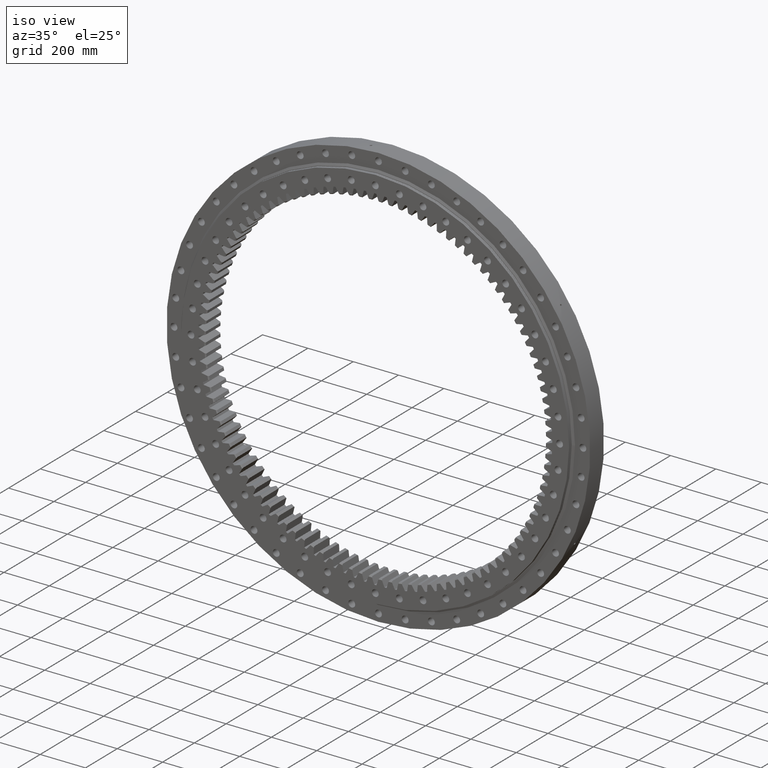
[diagram: clean part render]
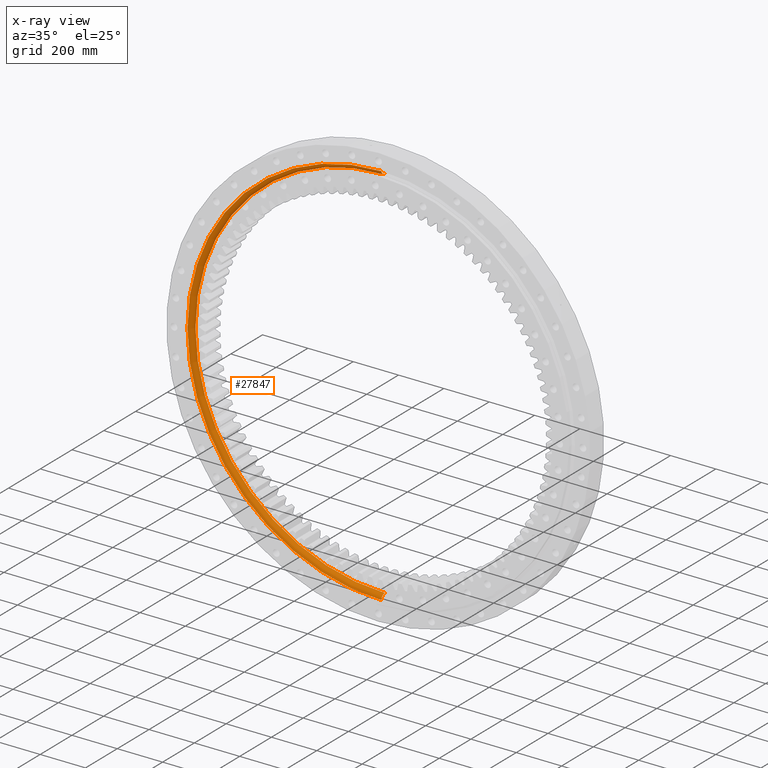
[diagram: x-ray — body ghosted, one internal face saturated and labeled with its STEP entity id]
A machine part, iso view, then the same camera in x-ray: the body is ghosted and one INTERNAL B-rep face — a face not visible from any outside direction — is saturated and labeled: STEP entity #27847.
In plain terms, the highlighted toroidal blend (fillet) surface has major radius 857.5 mm and minor (blend) radius 22.225 mm.
Its self-contained STEP definition (entity closure, byte-faithful):
#1252 = ORIENTED_EDGE ( 'NONE', *, *, #25237, .F. ) ;
#1438 = CARTESIAN_POINT ( 'NONE',  ( 4.636707684468887400E-014, 2.700790617478033900E-014, 835.2749999999997500 ) ) ;
#2132 = AXIS2_PLACEMENT_3D ( 'NONE', #26576, #11585, #29072 ) ;
#2999 = DIRECTION ( 'NONE',  ( 5.551115123125783900E-017, 6.617654413443251900E-017, 1.000000000000000000 ) ) ;
#3616 = VERTEX_POINT ( 'NONE', #1438 ) ;
#5535 = CIRCLE ( 'NONE', #17593, 22.22500000000027100 ) ;
#6039 = DIRECTION ( 'NONE',  ( -7.914688832368751900E-017, -1.000000000000000000, 6.617654413443253200E-017 ) ) ;
#6588 = VERTEX_POINT ( 'NONE', #8013 ) ;
#7452 = VERTEX_POINT ( 'NONE', #22463 ) ;
#8013 = CARTESIAN_POINT ( 'NONE',  ( -1.486587623604694000E-013, 2.700790617478028900E-014, -835.2749999999997500 ) ) ;
#8341 = ORIENTED_EDGE ( 'NONE', *, *, #12347, .F. ) ;
#8492 = DIRECTION ( 'NONE',  ( 1.779758311459935200E-016, 0.0000000000000000000, 1.000000000000000000 ) ) ;
#8640 = CARTESIAN_POINT ( 'NONE',  ( 4.760081218080359900E-014, 8.103251525895119500E-014, 857.5000000000000000 ) ) ;
#8682 = DIRECTION ( 'NONE',  ( 1.000000000000000000, -7.914688832368753200E-017, 0.0000000000000000000 ) ) ;
#10036 = AXIS2_PLACEMENT_3D ( 'NONE', #20987, #6039, #8682 ) ;
#11585 = DIRECTION ( 'NONE',  ( -7.914688832368751900E-017, -1.000000000000000000, 6.617654413443253200E-017 ) ) ;
#11938 = DIRECTION ( 'NONE',  ( -1.000000000000000000, 7.914688832368753200E-017, 1.779758311459931700E-016 ) ) ;
#12179 = AXIS2_PLACEMENT_3D ( 'NONE', #8640, #28584, #16152 ) ;
#12347 = EDGE_CURVE ( 'NONE', #13039, #6588, #5535, .T. ) ;
#13039 = VERTEX_POINT ( 'NONE', #19203 ) ;
#13409 = EDGE_CURVE ( 'NONE', #7452, #3616, #31270, .T. ) ;
#16152 = DIRECTION ( 'NONE',  ( 7.914688832368742100E-017, 1.000000000000000000, 0.0000000000000000000 ) ) ;
#17468 = FACE_OUTER_BOUND ( 'NONE', #22500, .T. ) ;
#17593 = AXIS2_PLACEMENT_3D ( 'NONE', #29435, #11938, #8492 ) ;
#19203 = CARTESIAN_POINT ( 'NONE',  ( -1.547539410537576100E-013, -22.11359578969494100, -855.2775000000001500 ) ) ;
#20351 = CARTESIAN_POINT ( 'NONE',  ( 1.922171513158615400E-030, 2.428612866367529900E-014, -2.269470475441039600E-030 ) ) ;
#20987 = CARTESIAN_POINT ( 'NONE',  ( 2.137591733871968700E-030, 2.700790617478032300E-014, -2.449588305028787100E-030 ) ) ;
#22463 = CARTESIAN_POINT ( 'NONE',  ( 4.572721635078998600E-014, -22.11359578969483100, 855.2775000000001500 ) ) ;
#22500 = EDGE_LOOP ( 'NONE', ( #28861, #25182, #8341, #1252 ) ) ;
#22577 = EDGE_CURVE ( 'NONE', #3616, #6588, #30981, .T. ) ;
#22870 = DIRECTION ( 'NONE',  ( -7.914688832368751900E-017, -1.000000000000000000, 6.617654413443253200E-017 ) ) ;
#23302 = TOROIDAL_SURFACE ( 'NONE', #28941, 857.5000000000000000, 22.22500000000026400 ) ;
#25182 = ORIENTED_EDGE ( 'NONE', *, *, #22577, .T. ) ;
#25237 = EDGE_CURVE ( 'NONE', #7452, #13039, #31613, .T. ) ;
#26576 = CARTESIAN_POINT ( 'NONE',  ( -1.750222296402147800E-015, -22.11359578969488700, 6.172175841678336300E-016 ) ) ;
#27847 = ADVANCED_FACE ( 'NONE', ( #17468 ), #23302, .F. ) ;
#28584 = DIRECTION ( 'NONE',  ( 1.000000000000000000, -7.914688832368751900E-017, -5.551115123125783900E-017 ) ) ;
#28861 = ORIENTED_EDGE ( 'NONE', *, *, #13409, .T. ) ;
#28941 = AXIS2_PLACEMENT_3D ( 'NONE', #20351, #22870, #2999 ) ;
#29072 = DIRECTION ( 'NONE',  ( 5.551115123125783900E-017, 6.490425766053452800E-017, 1.000000000000000000 ) ) ;
#29435 = CARTESIAN_POINT ( 'NONE',  ( -1.526142752076891400E-013, -3.246025793160058400E-014, -857.5000000000000000 ) ) ;
#30981 = CIRCLE ( 'NONE', #10036, 835.2749999999997500 ) ;
#31270 = CIRCLE ( 'NONE', #12179, 22.22500000000026400 ) ;
#31613 = CIRCLE ( 'NONE', #2132, 855.2775000000001500 ) ;